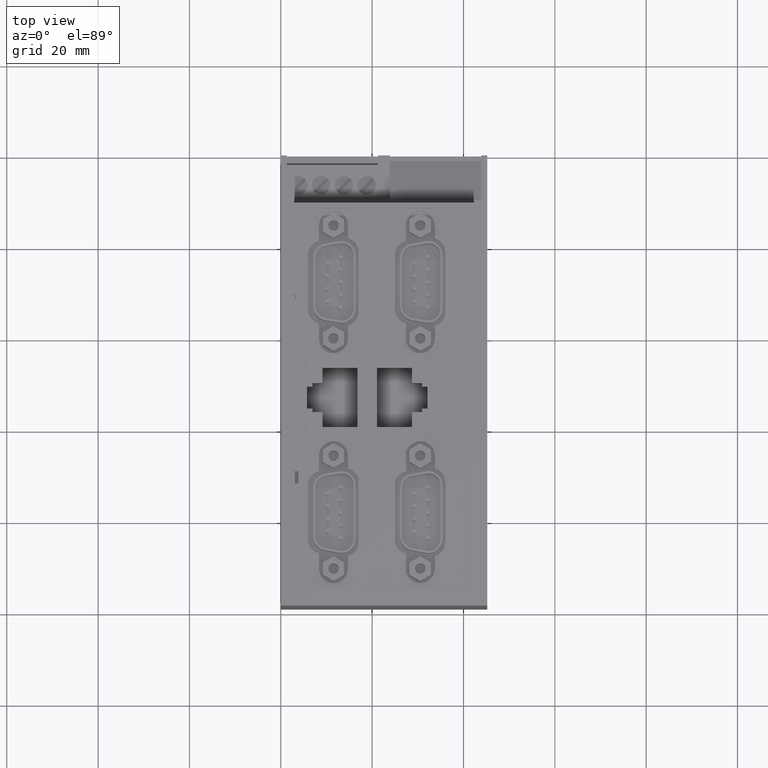
[diagram: clean part render]
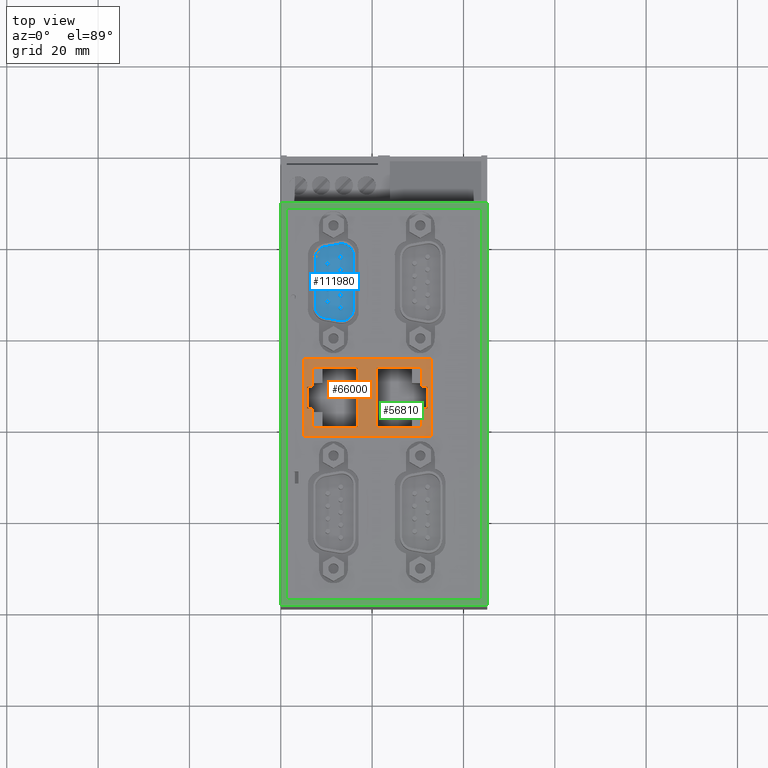
[diagram: same view with three faces highlighted in distinct colors, each labeled with its STEP entity id]
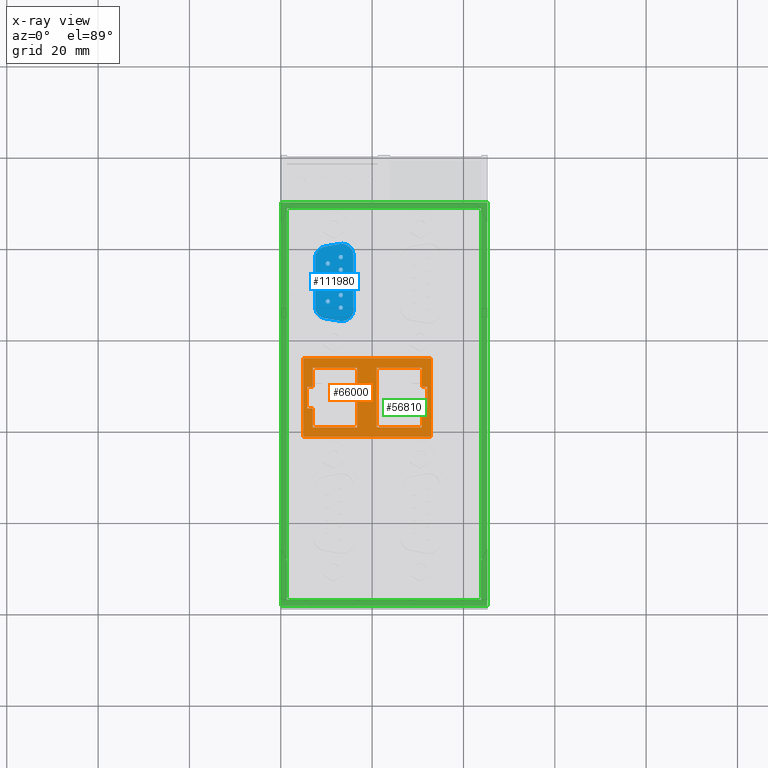
[diagram: x-ray of the same camera — body ghosted, the three highlighted faces saturated]
A machine part, top view with three faces highlighted in distinct colors.
The next image is the same camera in x-ray (body ghosted, the three faces saturated) — at least one of them is partly hidden behind the body in this view.
Their STEP definitions:

[orange] entity #66000 — the highlighted planar face has unit normal (-0, 0, 1).
#63610=CARTESIAN_POINT('',(-30.0154000000171,106.600000000012,
-6.38539999995358));
#63620=VERTEX_POINT('',#63610);
#63700=CARTESIAN_POINT('',(-12.8154000000171,106.6,-6.38539999995358));
#63710=VERTEX_POINT('',#63700);
#63740=CARTESIAN_POINT('',(40.4,106.59999999996,-6.38539999995358));
#63750=DIRECTION('',(1.,-7.38964445188328E-13,-0.));
#63760=VECTOR('',#63750,1.);
#63770=LINE('',#63740,#63760);
#63780=EDGE_CURVE('',#63620,#63710,#63770,.T.);
#63950=CARTESIAN_POINT('',(40.4,106.59999999996,21.6146000000464));
#63960=DIRECTION('',(-1.,7.38964445188328E-13,0.));
#63970=VECTOR('',#63960,1.);
#63980=LINE('',#63950,#63970);
#63990=CARTESIAN_POINT('',(-12.8154000000171,106.6,21.6146000000464));
#64000=VERTEX_POINT('',#63990);
#64010=CARTESIAN_POINT('',(-30.0154000000171,106.600000000012,
21.6146000000464));
#64020=VERTEX_POINT('',#64010);
#64030=EDGE_CURVE('',#64000,#64020,#63980,.T.);
#64340=CARTESIAN_POINT('',(-12.8154000000171,106.6,8.10559999999358));
#64350=DIRECTION('',(-6.47576724517151E-37,-8.76330016597908E-25,-1.));
#64360=VECTOR('',#64350,1.);
#64370=LINE('',#64340,#64360);
#64380=EDGE_CURVE('',#64000,#63710,#64370,.T.);
#64520=CARTESIAN_POINT('',(-6.15000000004601,106.599999999995,
15.2292000000189));
#64530=DIRECTION('',(7.38964445188328E-13,1.,-8.76380075283861E-25));
#64540=DIRECTION('',(1.,-7.38964445188328E-13,-0.));
#64550=AXIS2_PLACEMENT_3D('',#64520,#64530,#64540);
#64560=PLANE('',#64550);
#64570=CARTESIAN_POINT('',(-19.0154000000174,106.600000000004,
26.5292000000928));
#64580=DIRECTION('',(-1.52810122839464E-14,8.87673622208996E-25,1.));
#64590=VECTOR('',#64580,1.);
#64600=LINE('',#64570,#64590);
#64610=CARTESIAN_POINT('',(-19.0154000000173,106.600000000004,
19.5758003542371));
#64620=VERTEX_POINT('',#64610);
#64630=CARTESIAN_POINT('',(-19.0154000000173,106.600000000004,
20.7758003542371));
#64640=VERTEX_POINT('',#64630);
#64650=EDGE_CURVE('',#64620,#64640,#64600,.T.);
#64660=ORIENTED_EDGE('',*,*,#64650,.T.);
#64670=CARTESIAN_POINT('',(40.4,106.59999999996,19.575800354238));
#64680=DIRECTION('',(-1.,7.38964445188328E-13,-1.52810122827484E-14));
#64690=VECTOR('',#64680,1.);
#64700=LINE('',#64670,#64690);
#64710=CARTESIAN_POINT('',(-14.8954000000173,106.600000000001,
19.5758003542371));
#64720=VERTEX_POINT('',#64710);
#64730=EDGE_CURVE('',#64720,#64620,#64700,.T.);
#64740=ORIENTED_EDGE('',*,*,#64730,.T.);
#64750=CARTESIAN_POINT('',(-14.8954000000174,106.600000000001,
26.5292000000928));
#64760=DIRECTION('',(-1.52810122839464E-14,8.87673622208996E-25,1.));
#64770=VECTOR('',#64760,1.);
#64780=LINE('',#64750,#64770);
#64790=CARTESIAN_POINT('',(-14.8954000000171,106.600000000001,
9.72580035423711));
#64800=VERTEX_POINT('',#64790);
#64810=EDGE_CURVE('',#64800,#64720,#64780,.T.);
#64820=ORIENTED_EDGE('',*,*,#64810,.T.);
#64830=CARTESIAN_POINT('',(40.4,106.59999999996,9.72580035423796));
#64840=DIRECTION('',(1.,-7.38964445188328E-13,1.52810122827484E-14));
#64850=VECTOR('',#64840,1.);
#64860=LINE('',#64830,#64850);
#64870=CARTESIAN_POINT('',(-27.9354000000172,106.600000000011,
9.72580035423691));
#64880=VERTEX_POINT('',#64870);
#64890=EDGE_CURVE('',#64880,#64800,#64860,.T.);
#64900=ORIENTED_EDGE('',*,*,#64890,.T.);
#64910=CARTESIAN_POINT('',(-27.9354000000174,106.600000000011,
26.5292000000928));
#64920=DIRECTION('',(1.52810122839464E-14,-8.87673622208996E-25,-1.));
#64930=VECTOR('',#64920,1.);
#64940=LINE('',#64910,#64930);
#64950=CARTESIAN_POINT('',(-27.9354000000173,106.600000000011,
19.575800354237));
#64960=VERTEX_POINT('',#64950);
#64970=EDGE_CURVE('',#64960,#64880,#64940,.T.);
#64980=ORIENTED_EDGE('',*,*,#64970,.T.);
#64990=CARTESIAN_POINT('',(40.4,106.59999999996,19.575800354238));
#65000=DIRECTION('',(-1.,7.38964445188328E-13,-1.52810122827484E-14));
#65010=VECTOR('',#65000,1.);
#65020=LINE('',#64990,#65010);
#65030=CARTESIAN_POINT('',(-23.8154000000173,106.600000000008,
19.5758003542371));
#65040=VERTEX_POINT('',#65030);
#65050=EDGE_CURVE('',#65040,#64960,#65020,.T.);
#65060=ORIENTED_EDGE('',*,*,#65050,.T.);
#65070=CARTESIAN_POINT('',(-23.8154000000174,106.600000000008,
26.5292000000928));
#65080=DIRECTION('',(1.52810122839464E-14,-8.87673622208996E-25,-1.));
#65090=VECTOR('',#65080,1.);
#65100=LINE('',#65070,#65090);
#65110=CARTESIAN_POINT('',(-23.8154000000173,106.600000000008,
20.775800354237));
#65120=VERTEX_POINT('',#65110);
#65130=EDGE_CURVE('',#65120,#65040,#65100,.T.);
#65140=ORIENTED_EDGE('',*,*,#65130,.T.);
#65150=CARTESIAN_POINT('',(40.4,106.59999999996,20.775800354238));
#65160=DIRECTION('',(-1.,7.38964445188328E-13,-1.52810122827484E-14));
#65170=VECTOR('',#65160,1.);
#65180=LINE('',#65150,#65170);
#65190=EDGE_CURVE('',#64640,#65120,#65180,.T.);
#65200=ORIENTED_EDGE('',*,*,#65190,.T.);
#65210=EDGE_LOOP('',(#65200,#65140,#65060,#64980,#64900,#64820,#64740,
#64660));
#65220=FACE_BOUND('',#65210,.T.);
#65230=CARTESIAN_POINT('',(-30.0154000000171,106.600000000012,
-6.34700000000642));
#65240=DIRECTION('',(6.47576724517151E-37,8.76330016597908E-25,1.));
#65250=VECTOR('',#65240,1.);
#65260=LINE('',#65230,#65250);
#65270=EDGE_CURVE('',#63620,#64020,#65260,.T.);
#65280=ORIENTED_EDGE('',*,*,#65270,.T.);
#65290=ORIENTED_EDGE('',*,*,#63780,.F.);
#65300=ORIENTED_EDGE('',*,*,#64380,.T.);
#65310=ORIENTED_EDGE('',*,*,#64030,.F.);
#65320=EDGE_LOOP('',(#65310,#65300,#65290,#65280));
#65330=FACE_OUTER_BOUND('',#65320,.T.);
#65340=CARTESIAN_POINT('',(40.4,106.59999999996,-5.54660035414512));
#65350=DIRECTION('',(1.,-7.38964445188328E-13,-1.52810122827484E-14));
#65360=VECTOR('',#65350,1.);
#65370=LINE('',#65340,#65360);
#65380=CARTESIAN_POINT('',(-23.8154000000173,106.600000000008,
-5.54660035414414));
#65390=VERTEX_POINT('',#65380);
#65400=CARTESIAN_POINT('',(-19.0154000000173,106.600000000004,
-5.54660035414421));
#65410=VERTEX_POINT('',#65400);
#65420=EDGE_CURVE('',#65390,#65410,#65370,.T.);
#65430=ORIENTED_EDGE('',*,*,#65420,.T.);
#65440=CARTESIAN_POINT('',(-23.8154000000174,106.600000000008,-11.3));
#65450=DIRECTION('',(-1.52810122839464E-14,-8.65036469672774E-25,-1.));
#65460=VECTOR('',#65450,1.);
#65470=LINE('',#65440,#65460);
#65480=CARTESIAN_POINT('',(-23.8154000000173,106.600000000008,
-4.34660035414422));
#65490=VERTEX_POINT('',#65480);
#65500=EDGE_CURVE('',#65490,#65390,#65470,.T.);
#65510=ORIENTED_EDGE('',*,*,#65500,.T.);
#65520=CARTESIAN_POINT('',(40.4,106.59999999996,-4.3466003541452));
#65530=DIRECTION('',(1.,-7.38964445188328E-13,-1.52810122827484E-14));
#65540=VECTOR('',#65530,1.);
#65550=LINE('',#65520,#65540);
#65560=CARTESIAN_POINT('',(-27.9354000000173,106.600000000011,
-4.34660035414415));
#65570=VERTEX_POINT('',#65560);
#65580=EDGE_CURVE('',#65570,#65490,#65550,.T.);
#65590=ORIENTED_EDGE('',*,*,#65580,.T.);
#65600=CARTESIAN_POINT('',(-27.9354000000174,106.600000000011,-11.3));
#65610=DIRECTION('',(-1.52810122839464E-14,-8.65036469672774E-25,-1.));
#65620=VECTOR('',#65610,1.);
#65630=LINE('',#65600,#65620);
#65640=CARTESIAN_POINT('',(-27.9354000000172,106.600000000011,
5.50339964585593));
#65650=VERTEX_POINT('',#65640);
#65660=EDGE_CURVE('',#65650,#65570,#65630,.T.);
#65670=ORIENTED_EDGE('',*,*,#65660,.T.);
#65680=CARTESIAN_POINT('',(40.4,106.59999999996,5.50339964585488));
#65690=DIRECTION('',(-1.,7.38964445188328E-13,1.52810122827484E-14));
#65700=VECTOR('',#65690,1.);
#65710=LINE('',#65680,#65700);
#65720=CARTESIAN_POINT('',(-14.8954000000171,106.600000000001,
5.50339964585573));
#65730=VERTEX_POINT('',#65720);
#65740=EDGE_CURVE('',#65730,#65650,#65710,.T.);
#65750=ORIENTED_EDGE('',*,*,#65740,.T.);
#65760=CARTESIAN_POINT('',(-14.8954000000174,106.600000000001,-11.3));
#65770=DIRECTION('',(1.52810122839464E-14,8.65036469672774E-25,1.));
#65780=VECTOR('',#65770,1.);
#65790=LINE('',#65760,#65780);
#65800=CARTESIAN_POINT('',(-14.8954000000172,106.600000000001,
-4.34660035414428));
#65810=VERTEX_POINT('',#65800);
#65820=EDGE_CURVE('',#65810,#65730,#65790,.T.);
#65830=ORIENTED_EDGE('',*,*,#65820,.T.);
#65840=CARTESIAN_POINT('',(40.4,106.59999999996,-4.34660035414512));
#65850=DIRECTION('',(1.,-7.38964445188328E-13,-1.52810122827484E-14));
#65860=VECTOR('',#65850,1.);
#65870=LINE('',#65840,#65860);
#65880=CARTESIAN_POINT('',(-19.0154000000173,106.600000000004,
-4.34660035414421));
#65890=VERTEX_POINT('',#65880);
#65900=EDGE_CURVE('',#65890,#65810,#65870,.T.);
#65910=ORIENTED_EDGE('',*,*,#65900,.T.);
#65920=CARTESIAN_POINT('',(-19.0154000000174,106.600000000004,-11.3));
#65930=DIRECTION('',(1.52810122839464E-14,8.65036469672774E-25,1.));
#65940=VECTOR('',#65930,1.);
#65950=LINE('',#65920,#65940);
#65960=EDGE_CURVE('',#65410,#65890,#65950,.T.);
#65970=ORIENTED_EDGE('',*,*,#65960,.T.);
#65980=EDGE_LOOP('',(#65970,#65910,#65830,#65750,#65670,#65590,#65510,
#65430));
#65990=FACE_BOUND('',#65980,.T.);
#66000=ADVANCED_FACE('',(#65220,#65330,#65990),#64560,.T.);

[blue] entity #111980 — the highlighted planar face has unit normal (0, -0, -1).
#99040=CARTESIAN_POINT('',(-17.6082481189499,104.799999999991,
1.65099999998025));
#99050=DIRECTION('',(-7.38964445188328E-13,-1.,8.76330016597908E-25));
#99060=DIRECTION('',(1.,-7.38964445188328E-13,-0.));
#99070=AXIS2_PLACEMENT_3D('',#99040,#99050,#99060);
#99080=PLANE('',#99070);
#108100=CARTESIAN_POINT('',(-1.53769563678201,104.799999999979,
-3.75424403947139));
#108110=VERTEX_POINT('',#108100);
#108190=CARTESIAN_POINT('',(9.14559936904206,104.799999999971,
-3.75424403947148));
#108200=VERTEX_POINT('',#108190);
#108230=CARTESIAN_POINT('',(28.9417518810975,104.799999999957,
-3.75424403947165));
#108240=DIRECTION('',(1.,-7.38964445188328E-13,-8.56611879455543E-15));
#108250=VECTOR('',#108240,1.);
#108260=LINE('',#108230,#108250);
#108270=EDGE_CURVE('',#108110,#108200,#108260,.T.);
#108500=CARTESIAN_POINT('',(11.6470110625455,104.799999999969,
-1.65531041003027));
#108510=VERTEX_POINT('',#108500);
#108540=CARTESIAN_POINT('',(9.14559936904208,104.799999999971,
-1.21424403860593));
#108550=DIRECTION('',(-4.90822482988215E-15,1.,1.2878153174413E-13));
#108560=DIRECTION('',(0.984807722795907,2.71963580908673E-14,
-0.173648349032003));
#108570=AXIS2_PLACEMENT_3D('',#108540,#108550,#108560);
#108580=CIRCLE('',#108570,2.54000000086555);
#108590=EDGE_CURVE('',#108510,#108200,#108580,.T.);
#108820=CARTESIAN_POINT('',(12.2253635591452,104.799999999971,
1.62468958926567));
#108830=VERTEX_POINT('',#108820);
#108860=CARTESIAN_POINT('',(10.2375079124088,104.799999999971,
-9.64900000009366));
#108870=DIRECTION('',(0.173648177666943,-1.28314026071052E-13,
0.984807753012206));
#108880=VECTOR('',#108870,1.);
#108890=LINE('',#108860,#108880);
#108900=EDGE_CURVE('',#108510,#108830,#108890,.T.);
#109130=CARTESIAN_POINT('',(9.71649820946184,104.799999999971,
4.6057450240982));
#109140=VERTEX_POINT('',#109130);
#109170=CARTESIAN_POINT('',(9.72395186649419,104.799999999971,
2.06575596053971));
#109180=DIRECTION('',(-4.90822482988215E-15,1.,1.2878153174413E-13));
#109190=DIRECTION('',(0.00787416145218496,-1.28738891144272E-13,
0.99996899831016));
#109200=AXIS2_PLACEMENT_3D('',#109170,#109180,#109190);
#109210=CIRCLE('',#109200,2.53999999999998);
#109220=EDGE_CURVE('',#109140,#108830,#109210,.T.);
#109450=CARTESIAN_POINT('',(-2.10859447365656,104.79999999998,
4.6057450240983));
#109460=VERTEX_POINT('',#109450);
#109490=CARTESIAN_POINT('',(28.9417518810975,104.799999999957,
4.60574502409804));
#109500=DIRECTION('',(-1.,7.38964445188328E-13,8.54987468539064E-15));
#109510=VECTOR('',#109500,1.);
#109520=LINE('',#109490,#109510);
#109530=EDGE_CURVE('',#109140,#109460,#109520,.T.);
#109760=CARTESIAN_POINT('',(-4.61745982600397,104.799999999981,
1.6246895883985));
#109770=VERTEX_POINT('',#109760);
#109800=CARTESIAN_POINT('',(-2.11604813274053,104.79999999998,
2.06575595978048));
#109810=DIRECTION('',(-4.90822482988215E-15,1.,1.2878153174413E-13));
#109820=DIRECTION('',(-0.999999999999986,-4.9082465800848E-15,
1.68892250515967E-7));
#109830=AXIS2_PLACEMENT_3D('',#109800,#109810,#109820);
#109840=CIRCLE('',#109830,2.54000000076533);
#109850=EDGE_CURVE('',#109770,#109460,#109840,.T.);
#110080=CARTESIAN_POINT('',(-4.03910732943316,104.799999999981,
-1.65531041073412));
#110090=VERTEX_POINT('',#110080);
#110120=CARTESIAN_POINT('',(-2.62960417942074,104.79999999998,
-9.64900000009366));
#110130=DIRECTION('',(0.173648177666926,-1.2832790385886E-13,
-0.984807753012209));
#110140=VECTOR('',#110130,1.);
#110150=LINE('',#110120,#110140);
#110160=EDGE_CURVE('',#109770,#110090,#110150,.T.);
#110360=CARTESIAN_POINT('',(-1.53769563678209,104.799999999979,
-1.21424403946009));
#110370=DIRECTION('',(-4.90822482988215E-15,1.,1.2878153174413E-13));
#110380=DIRECTION('',(-0.0155103065949043,1.2868991227896E-13,
-0.999879707959579));
#110390=AXIS2_PLACEMENT_3D('',#110360,#110370,#110380);
#110400=CIRCLE('',#110390,2.54000000000007);
#110410=EDGE_CURVE('',#108110,#110090,#110400,.T.);
#110530=CARTESIAN_POINT('',(3.80395186649423,104.799999999975,
1.84575596053026));
#110540=DIRECTION('',(4.90822482988215E-15,-1.,-1.2878153174413E-13));
#110550=DIRECTION('',(-1.,-4.90822482988314E-15,7.69485292619489E-15));
#110560=AXIS2_PLACEMENT_3D('',#110530,#110540,#110550);
#110570=CIRCLE('',#110560,0.5);
#110580=CARTESIAN_POINT('',(4.30395186649423,104.799999999975,
1.84575596053025));
#110590=VERTEX_POINT('',#110580);
#110600=CARTESIAN_POINT('',(3.30395186649423,104.799999999975,
1.84575596053026));
#110610=VERTEX_POINT('',#110600);
#110620=EDGE_CURVE('',#110590,#110610,#110570,.T.);
#110630=ORIENTED_EDGE('',*,*,#110620,.T.);
#110640=EDGE_CURVE('',#110610,#110590,#110570,.T.);
#110650=ORIENTED_EDGE('',*,*,#110640,.T.);
#110660=EDGE_LOOP('',(#110650,#110630));
#110670=FACE_BOUND('',#110660,.T.);
#110680=CARTESIAN_POINT('',(6.57395186649423,104.799999999973,
1.84575596053023));
#110690=DIRECTION('',(4.90822482988215E-15,-1.,-1.2878153174413E-13));
#110700=DIRECTION('',(1.,4.90822482988332E-15,-9.10483616746884E-15));
#110710=AXIS2_PLACEMENT_3D('',#110680,#110690,#110700);
#110720=CIRCLE('',#110710,0.5);
#110730=CARTESIAN_POINT('',(6.07395186649423,104.799999999974,
1.84575596053024));
#110740=VERTEX_POINT('',#110730);
#110750=CARTESIAN_POINT('',(7.07395186649423,104.799999999973,
1.84575596053023));
#110760=VERTEX_POINT('',#110750);
#110770=EDGE_CURVE('',#110740,#110760,#110720,.T.);
#110780=ORIENTED_EDGE('',*,*,#110770,.T.);
#110790=EDGE_CURVE('',#110760,#110740,#110720,.T.);
#110800=ORIENTED_EDGE('',*,*,#110790,.T.);
#110810=EDGE_LOOP('',(#110800,#110780));
#110820=FACE_BOUND('',#110810,.T.);
#110830=CARTESIAN_POINT('',(5.18895186649419,104.799999999974,
-0.994244039469756));
#110840=DIRECTION('',(4.90822482988215E-15,-1.,-1.2878153174413E-13));
#110850=DIRECTION('',(-1.,-4.90822482988323E-15,8.39984454683187E-15));
#110860=AXIS2_PLACEMENT_3D('',#110830,#110840,#110850);
#110870=CIRCLE('',#110860,0.5);
#110880=CARTESIAN_POINT('',(5.68895186649419,104.799999999974,
-0.994244039469759));
#110890=VERTEX_POINT('',#110880);
#110900=CARTESIAN_POINT('',(4.68895186649419,104.799999999974,
-0.994244039469751));
#110910=VERTEX_POINT('',#110900);
#110920=EDGE_CURVE('',#110890,#110910,#110870,.T.);
#110930=ORIENTED_EDGE('',*,*,#110920,.T.);
#110940=EDGE_CURVE('',#110910,#110890,#110870,.T.);
#110950=ORIENTED_EDGE('',*,*,#110940,.T.);
#110960=EDGE_LOOP('',(#110950,#110930));
#110970=FACE_BOUND('',#110960,.T.);
#110980=CARTESIAN_POINT('',(1.03395186649423,104.799999999977,
1.84575596053028));
#110990=DIRECTION('',(4.90822482988215E-15,-1.,-1.2878153174413E-13));
#111000=DIRECTION('',(-1.,-4.90822482988314E-15,7.69485292619489E-15));
#111010=AXIS2_PLACEMENT_3D('',#110980,#110990,#111000);
#111020=CIRCLE('',#111010,0.5);
#111030=CARTESIAN_POINT('',(1.53395186649423,104.799999999977,
1.84575596053027));
#111040=VERTEX_POINT('',#111030);
#111050=CARTESIAN_POINT('',(0.533951866494231,104.799999999977,
1.84575596053028));
#111060=VERTEX_POINT('',#111050);
#111070=EDGE_CURVE('',#111040,#111060,#111020,.T.);
#111080=ORIENTED_EDGE('',*,*,#111070,.T.);
#111090=EDGE_CURVE('',#111060,#111040,#111020,.T.);
#111100=ORIENTED_EDGE('',*,*,#111090,.T.);
#111110=EDGE_LOOP('',(#111100,#111080));
#111120=FACE_BOUND('',#111110,.T.);
#111130=CARTESIAN_POINT('',(-1.73604813350576,104.799999999979,
1.8457559605303));
#111140=DIRECTION('',(4.90822482988215E-15,-1.,-1.2878153174413E-13));
#111150=DIRECTION('',(-1.,-4.90822482988314E-15,7.6948529261949E-15));
#111160=AXIS2_PLACEMENT_3D('',#111130,#111140,#111150);
#111170=CIRCLE('',#111160,0.5);
#111180=CARTESIAN_POINT('',(-1.23604813350576,104.799999999979,
1.8457559605303));
#111190=VERTEX_POINT('',#111180);
#111200=CARTESIAN_POINT('',(-2.23604813350577,104.799999999979,
1.84575596053031));
#111210=VERTEX_POINT('',#111200);
#111220=EDGE_CURVE('',#111190,#111210,#111170,.T.);
#111230=ORIENTED_EDGE('',*,*,#111220,.T.);
#111240=EDGE_CURVE('',#111210,#111190,#111170,.T.);
#111250=ORIENTED_EDGE('',*,*,#111240,.T.);
#111260=EDGE_LOOP('',(#111250,#111230));
#111270=FACE_BOUND('',#111260,.T.);
#111280=CARTESIAN_POINT('',(-0.35104813350581,104.799999999978,
-0.994244039469711));
#111290=DIRECTION('',(4.90822482988215E-15,-1.,-1.2878153174413E-13));
#111300=DIRECTION('',(-1.,-4.90822482988323E-15,8.39984454683187E-15));
#111310=AXIS2_PLACEMENT_3D('',#111280,#111290,#111300);
#111320=CIRCLE('',#111310,0.500000000000001);
#111330=CARTESIAN_POINT('',(0.148951866494191,104.799999999978,
-0.994244039469715));
#111340=VERTEX_POINT('',#111330);
#111350=CARTESIAN_POINT('',(-0.851048133505811,104.799999999978,
-0.994244039469707));
#111360=VERTEX_POINT('',#111350);
#111370=EDGE_CURVE('',#111340,#111360,#111320,.T.);
#111380=ORIENTED_EDGE('',*,*,#111370,.T.);
#111390=EDGE_CURVE('',#111360,#111340,#111320,.T.);
#111400=ORIENTED_EDGE('',*,*,#111390,.T.);
#111410=EDGE_LOOP('',(#111400,#111380));
#111420=FACE_BOUND('',#111410,.T.);
#111430=CARTESIAN_POINT('',(9.34395186649423,104.799999999971,
1.84575596053021));
#111440=DIRECTION('',(4.90822482988215E-15,-1.,-1.2878153174413E-13));
#111450=DIRECTION('',(-1.,-4.90822482988314E-15,7.6948529261949E-15));
#111460=AXIS2_PLACEMENT_3D('',#111430,#111440,#111450);
#111470=CIRCLE('',#111460,0.5);
#111480=CARTESIAN_POINT('',(8.84395186649423,104.799999999972,
1.84575596053021));
#111490=VERTEX_POINT('',#111480);
#111500=CARTESIAN_POINT('',(9.84395186649423,104.799999999971,
1.84575596053021));
#111510=VERTEX_POINT('',#111500);
#111520=EDGE_CURVE('',#111490,#111510,#111470,.T.);
#111530=ORIENTED_EDGE('',*,*,#111520,.T.);
#111540=EDGE_CURVE('',#111510,#111490,#111470,.T.);
#111550=ORIENTED_EDGE('',*,*,#111540,.T.);
#111560=EDGE_LOOP('',(#111550,#111530));
#111570=FACE_BOUND('',#111560,.T.);
#111580=CARTESIAN_POINT('',(2.41895186649419,104.799999999976,
-0.994244039469734));
#111590=DIRECTION('',(4.90822482988215E-15,-1.,-1.2878153174413E-13));
#111600=DIRECTION('',(-1.,-4.90822482988323E-15,8.39984454683187E-15));
#111610=AXIS2_PLACEMENT_3D('',#111580,#111590,#111600);
#111620=CIRCLE('',#111610,0.5);
#111630=CARTESIAN_POINT('',(1.91895186649419,104.799999999977,
-0.99424403946973));
#111640=VERTEX_POINT('',#111630);
#111650=CARTESIAN_POINT('',(2.91895186649419,104.799999999976,
-0.994244039469738));
#111660=VERTEX_POINT('',#111650);
#111670=EDGE_CURVE('',#111640,#111660,#111620,.T.);
#111680=ORIENTED_EDGE('',*,*,#111670,.T.);
#111690=EDGE_CURVE('',#111660,#111640,#111620,.T.);
#111700=ORIENTED_EDGE('',*,*,#111690,.T.);
#111710=EDGE_LOOP('',(#111700,#111680));
#111720=FACE_BOUND('',#111710,.T.);
#111730=CARTESIAN_POINT('',(7.95895186649419,104.799999999972,
-0.994244039469779));
#111740=DIRECTION('',(4.90822482988215E-15,-1.,-1.2878153174413E-13));
#111750=DIRECTION('',(-1.,-4.90822482988323E-15,8.39984454683187E-15));
#111760=AXIS2_PLACEMENT_3D('',#111730,#111740,#111750);
#111770=CIRCLE('',#111760,0.5);
#111780=CARTESIAN_POINT('',(8.45895186649419,104.799999999972,
-0.994244039469783));
#111790=VERTEX_POINT('',#111780);
#111800=CARTESIAN_POINT('',(7.45895186649419,104.799999999972,
-0.994244039469774));
#111810=VERTEX_POINT('',#111800);
#111820=EDGE_CURVE('',#111790,#111810,#111770,.T.);
#111830=ORIENTED_EDGE('',*,*,#111820,.T.);
#111840=EDGE_CURVE('',#111810,#111790,#111770,.T.);
#111850=ORIENTED_EDGE('',*,*,#111840,.T.);
#111860=EDGE_LOOP('',(#111850,#111830));
#111870=FACE_BOUND('',#111860,.T.);
#111880=ORIENTED_EDGE('',*,*,#108900,.F.);
#111890=ORIENTED_EDGE('',*,*,#109220,.T.);
#111900=ORIENTED_EDGE('',*,*,#109530,.F.);
#111910=ORIENTED_EDGE('',*,*,#109850,.T.);
#111920=ORIENTED_EDGE('',*,*,#110160,.F.);
#111930=ORIENTED_EDGE('',*,*,#110410,.T.);
#111940=ORIENTED_EDGE('',*,*,#108270,.F.);
#111950=ORIENTED_EDGE('',*,*,#108590,.T.);
#111960=EDGE_LOOP('',(#111950,#111940,#111930,#111920,#111910,#111900,
#111890,#111880));
#111970=FACE_OUTER_BOUND('',#111960,.T.);
#111980=ADVANCED_FACE('',(#110670,#110820,#110970,#111120,#111270,
#111420,#111570,#111720,#111870,#111970),#99080,.F.);

[green] entity #56810 — the highlighted planar face has unit normal (0, -0, -1).
#1160=CARTESIAN_POINT('',(21.3000000000241,106.999999999943,-11.3));
#1170=VERTEX_POINT('',#1160);
#1200=CARTESIAN_POINT('',(24.,106.999999999941,-11.3));
#1210=DIRECTION('',(-1.,7.38964445188328E-13,0.));
#1220=VECTOR('',#1210,1.);
#1230=LINE('',#1200,#1220);
#1240=CARTESIAN_POINT('',(-66.9999999999093,107.000000000009,-11.3));
#1250=VERTEX_POINT('',#1240);
#1260=EDGE_CURVE('',#1170,#1250,#1230,.T.);
#56040=CARTESIAN_POINT('',(21.2999999999832,106.999999999943,33.9));
#56050=VERTEX_POINT('',#56040);
#56080=CARTESIAN_POINT('',(21.3000000000241,106.999999999943,-11.3));
#56090=DIRECTION('',(-1.81046150293795E-12,2.21416216699985E-24,1.));
#56100=VECTOR('',#56090,1.);
#56110=LINE('',#56080,#56100);
#56120=EDGE_CURVE('',#1170,#56050,#56110,.T.);
#56240=CARTESIAN_POINT('',(-57.9836632390448,107.000000000002,
-1.82808689776043));
#56250=DIRECTION('',(-7.38964445188328E-13,-1.,8.76330016597908E-25));
#56260=DIRECTION('',(1.,-7.38964445188328E-13,-0.));
#56270=AXIS2_PLACEMENT_3D('',#56240,#56250,#56260);
#56280=PLANE('',#56270);
#56290=ORIENTED_EDGE('',*,*,#56120,.F.);
#56300=CARTESIAN_POINT('',(24.,106.999999999941,33.9));
#56310=DIRECTION('',(-1.,7.38964445188328E-13,0.));
#56320=VECTOR('',#56310,1.);
#56330=LINE('',#56300,#56320);
#56340=CARTESIAN_POINT('',(-66.9999999999093,107.000000000009,33.9));
#56350=VERTEX_POINT('',#56340);
#56360=EDGE_CURVE('',#56050,#56350,#56330,.T.);
#56370=ORIENTED_EDGE('',*,*,#56360,.F.);
#56380=CARTESIAN_POINT('',(-66.9999999999093,107.000000000009,-11.3));
#56390=DIRECTION('',(0.,-8.76330016597908E-25,-1.));
#56400=VECTOR('',#56390,1.);
#56410=LINE('',#56380,#56400);
#56420=EDGE_CURVE('',#56350,#1250,#56410,.T.);
#56430=ORIENTED_EDGE('',*,*,#56420,.F.);
#56440=ORIENTED_EDGE('',*,*,#1260,.T.);
#56450=EDGE_LOOP('',(#56440,#56430,#56370,#56290));
#56460=FACE_OUTER_BOUND('',#56450,.T.);
#56470=CARTESIAN_POINT('',(-65.7499999999964,107.000000000008,-11.3));
#56480=DIRECTION('',(-6.4780758989847E-37,-8.76330016597908E-25,-1.));
#56490=VECTOR('',#56480,1.);
#56500=LINE('',#56470,#56490);
#56510=CARTESIAN_POINT('',(-65.7499999999964,107.000000000008,
32.6499999999959));
#56520=VERTEX_POINT('',#56510);
#56530=CARTESIAN_POINT('',(-65.7499999999964,107.000000000008,
-10.0499999998488));
#56540=VERTEX_POINT('',#56530);
#56550=EDGE_CURVE('',#56520,#56540,#56500,.T.);
#56560=ORIENTED_EDGE('',*,*,#56550,.T.);
#56570=CARTESIAN_POINT('',(24.,106.999999999941,32.6499999999959));
#56580=DIRECTION('',(-1.,7.38964445188328E-13,0.));
#56590=VECTOR('',#56580,1.);
#56600=LINE('',#56570,#56590);
#56610=CARTESIAN_POINT('',(20.0499999999854,106.999999999944,
32.6499999999959));
#56620=VERTEX_POINT('',#56610);
#56630=EDGE_CURVE('',#56620,#56520,#56600,.T.);
#56640=ORIENTED_EDGE('',*,*,#56630,.T.);
#56650=CARTESIAN_POINT('',(20.0499999999854,106.999999999944,-11.3));
#56660=DIRECTION('',(6.4780758989847E-37,8.76330016597908E-25,1.));
#56670=VECTOR('',#56660,1.);
#56680=LINE('',#56650,#56670);
#56690=CARTESIAN_POINT('',(20.0499999999854,106.999999999944,
-10.0499999998488));
#56700=VERTEX_POINT('',#56690);
#56710=EDGE_CURVE('',#56700,#56620,#56680,.T.);
#56720=ORIENTED_EDGE('',*,*,#56710,.T.);
#56730=CARTESIAN_POINT('',(24.,106.999999999941,-10.0499999998488));
#56740=DIRECTION('',(1.,-7.38964445188328E-13,-0.));
#56750=VECTOR('',#56740,1.);
#56760=LINE('',#56730,#56750);
#56770=EDGE_CURVE('',#56540,#56700,#56760,.T.);
#56780=ORIENTED_EDGE('',*,*,#56770,.T.);
#56790=EDGE_LOOP('',(#56780,#56720,#56640,#56560));
#56800=FACE_BOUND('',#56790,.T.);
#56810=ADVANCED_FACE('',(#56460,#56800),#56280,.F.);